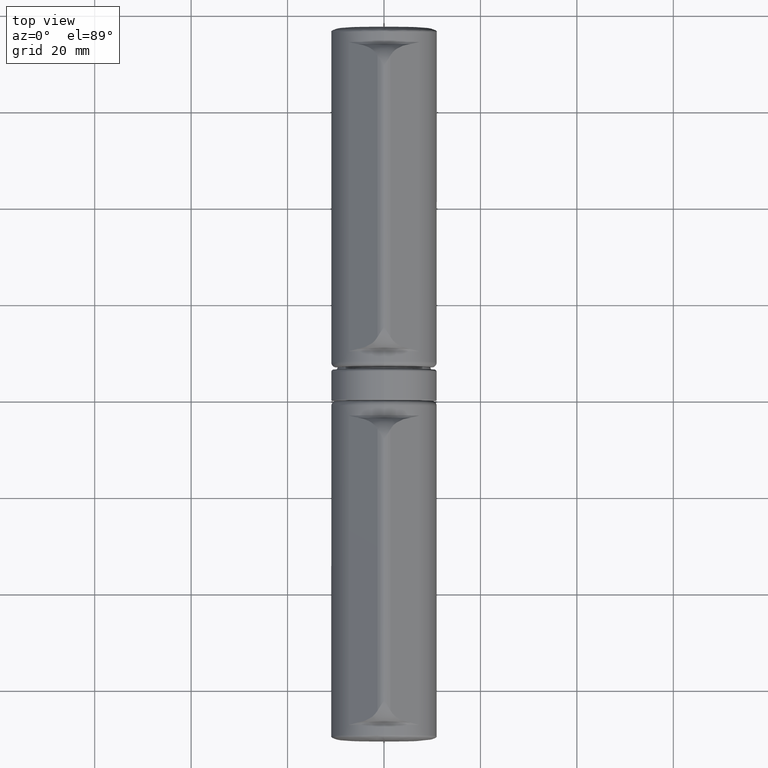
[diagram: clean part render]
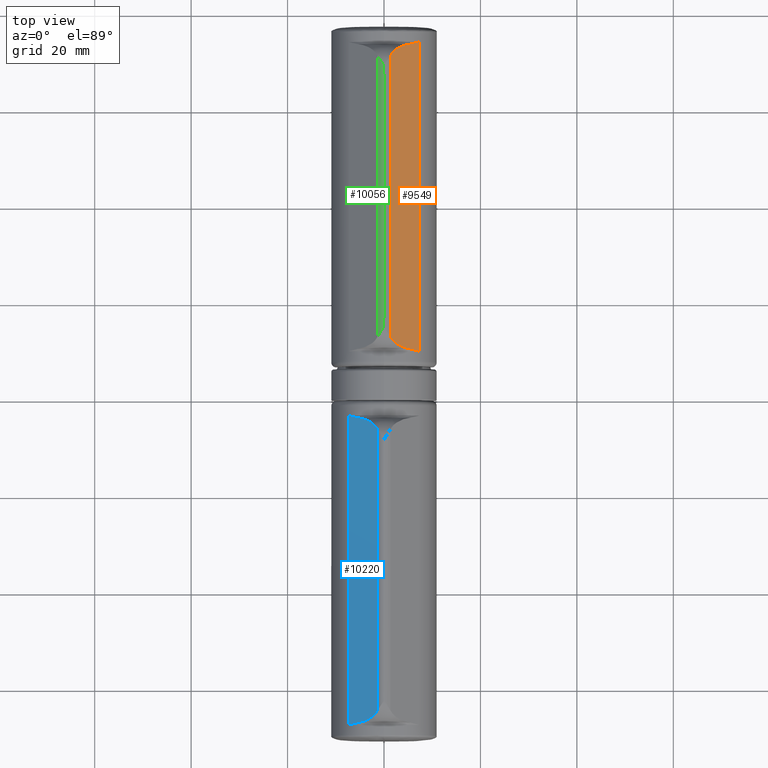
[diagram: same view with three faces highlighted in distinct colors, each labeled with its STEP entity id]
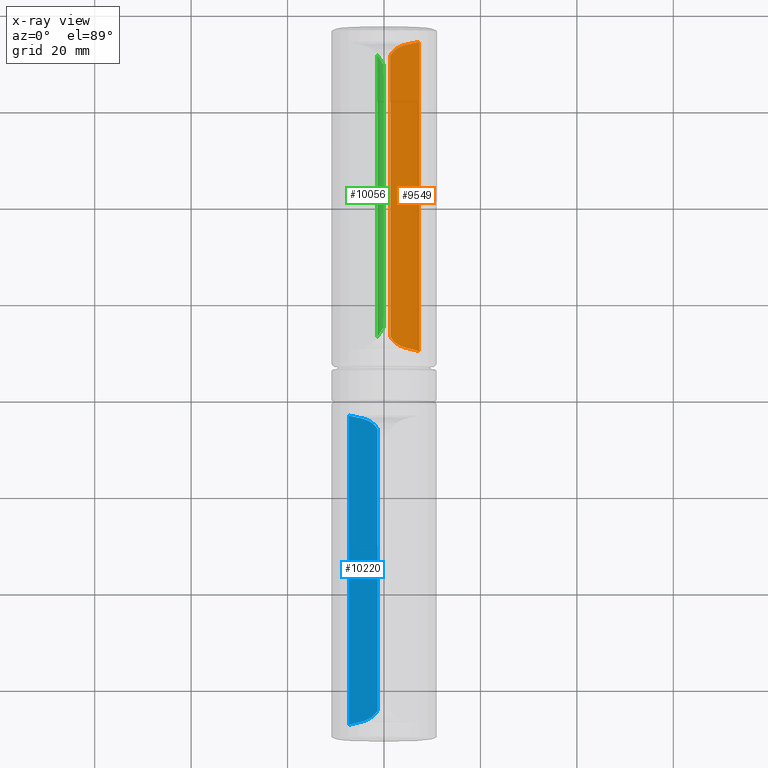
[diagram: x-ray of the same camera — body ghosted, the three highlighted faces saturated]
A machine part, top view with three faces highlighted in distinct colors.
The next image is the same camera in x-ray (body ghosted, the three faces saturated) — at least one of them is partly hidden behind the body in this view.
Their STEP definitions:

[orange] entity #9549 — the highlighted planar face has unit normal (-0.663, 0, -0.7486).
#92 = CARTESIAN_POINT ( 'NONE',  ( 5.447942985781649483, -31.62104201919538227, 9.868854917819074757 ) ) ;
#141 = ORIENTED_EDGE ( 'NONE', *, *, #9318, .T. ) ;
#223 = CARTESIAN_POINT ( 'NONE',  ( 3.940691542818085313, -31.26865915691613651, 11.20372505119188489 ) ) ;
#423 = CARTESIAN_POINT ( 'NONE',  ( 1.351001462188401891, 29.20793136768486065, 13.49723749695038322 ) ) ;
#501 = CARTESIAN_POINT ( 'NONE',  ( 2.860236993035878417, 30.76370890940802738, 12.16061019182591352 ) ) ;
#640 = DIRECTION ( 'NONE',  ( -0.6630007310922775288, 0.000000000000000000, -0.7486187484768902500 ) ) ;
#874 = VERTEX_POINT ( 'NONE', #8599 ) ;
#875 = CARTESIAN_POINT ( 'NONE',  ( 7.293008042015048709, -32.06640379061051505, 8.234806233245793194 ) ) ;
#1179 = CARTESIAN_POINT ( 'NONE',  ( 6.987323153768811856, -31.97934799532081840, 8.505530556946553133 ) ) ;
#1352 = CARTESIAN_POINT ( 'NONE',  ( 1.873287189992750346, 29.96014211084572310, 13.03468453514189918 ) ) ;
#1356 = EDGE_CURVE ( 'NONE', #3161, #10450, #1776, .T. ) ;
#1707 = EDGE_CURVE ( 'NONE', #4069, #874, #5567, .T. ) ;
#1776 = B_SPLINE_CURVE_WITH_KNOTS ( 'NONE', 3,
 ( #6953, #1892, #7778, #8617, #2728, #5057 ),
 .UNSPECIFIED., .F., .F.,
 ( 4, 2, 4 ),
 ( -2.097617699593517487E-05, 0.001231787720640654385, 0.002484551618277243846 ),
 .UNSPECIFIED. ) ;
#1882 = CARTESIAN_POINT ( 'NONE',  ( 2.860889670685041963, -30.75107170427024528, 12.16003215960398443 ) ) ;
#1892 = CARTESIAN_POINT ( 'NONE',  ( 6.987265212205322484, 31.97933149418308219, 8.505581871850210973 ) ) ;
#1916 = CARTESIAN_POINT ( 'NONE',  ( 3.035715932361849223, -30.85344858703630422, 12.00520042510404117 ) ) ;
#2040 = EDGE_CURVE ( 'NONE', #2745, #4069, #5476, .T. ) ;
#2072 = CARTESIAN_POINT ( 'NONE',  ( 3.951137175205043484, 31.26407879760331809, 11.19447406472732531 ) ) ;
#2326 = FACE_OUTER_BOUND ( 'NONE', #8473, .T. ) ;
#2490 = CARTESIAN_POINT ( 'NONE',  ( 2.519150998510887973, -30.51974603272019948, 12.46268686863303721 ) ) ;
#2687 = CARTESIAN_POINT ( 'NONE',  ( 6.067205832993830761, -31.73636218328562109, 9.320415914287179859 ) ) ;
#2728 = CARTESIAN_POINT ( 'NONE',  ( 5.758780296161765122, 31.66736844719444832, 9.593567444118923149 ) ) ;
#2745 = VERTEX_POINT ( 'NONE', #3302 ) ;
#2883 = AXIS2_PLACEMENT_3D ( 'NONE', #9923, #640, #4760 ) ;
#3161 = VERTEX_POINT ( 'NONE', #6582 ) ;
#3302 = CARTESIAN_POINT ( 'NONE',  ( 1.351001462188401891, 29.20793136768486065, 13.49723749695038322 ) ) ;
#3524 = ORIENTED_EDGE ( 'NONE', *, *, #1356, .T. ) ;
#3895 = PLANE ( 'NONE',  #2883 ) ;
#4069 = VERTEX_POINT ( 'NONE', #4658 ) ;
#4095 = CARTESIAN_POINT ( 'NONE',  ( 5.447942985781649483, -31.62104201919538227, 9.868854917819074757 ) ) ;
#4139 = CARTESIAN_POINT ( 'NONE',  ( 5.068691198825554523, -31.56451926592471224, 10.20473244230202603 ) ) ;
#4309 = B_SPLINE_CURVE_WITH_KNOTS ( 'NONE', 3,
 ( #9738, #4655, #7198, #8953, #2072, #5529, #8044, #501, #5603, #1352, #4587, #423 ),
 .UNSPECIFIED., .F., .F.,
 ( 4, 2, 2, 2, 2, 4 ),
 ( 0.002461092890325600798, 0.003982605754969787380, 0.004743362187291880888, 0.005504118619613973529, 0.007025631484258155340, 0.008547144348902338887 ),
 .UNSPECIFIED. ) ;
#4355 = ORIENTED_EDGE ( 'NONE', *, *, #7633, .F. ) ;
#4587 = CARTESIAN_POINT ( 'NONE',  ( 1.586987748190707537, 29.62056190616313245, 13.28824048683594938 ) ) ;
#4655 = CARTESIAN_POINT ( 'NONE',  ( 5.070549496298936809, 31.56479622200824409, 10.20308667456517959 ) ) ;
#4658 = CARTESIAN_POINT ( 'NONE',  ( 1.351001462184556967, -29.20793136767813181, 13.49723749695378849 ) ) ;
#4760 = DIRECTION ( 'NONE',  ( -0.7486187484768902500, 0.000000000000000000, 0.6630007310922775288 ) ) ;
#4852 = CARTESIAN_POINT ( 'NONE',  ( 1.587154504393031296, -29.62085348540339780, 13.28809280220437650 ) ) ;
#4967 = CARTESIAN_POINT ( 'NONE',  ( 4.691065978044128393, -31.48693990495932837, 10.53916942770528387 ) ) ;
#5043 = ORIENTED_EDGE ( 'NONE', *, *, #1707, .T. ) ;
#5057 = CARTESIAN_POINT ( 'NONE',  ( 5.447942985781639713, 31.62104201919538227, 9.868854917819081862 ) ) ;
#5199 = CARTESIAN_POINT ( 'NONE',  ( 1.872568329513564667, -29.95895200636811495, 13.03532118099698067 ) ) ;
#5235 = CARTESIAN_POINT ( 'NONE',  ( 2.351011572594790877, -30.38966351073075245, 12.61159652730056457 ) ) ;
#5323 = CARTESIAN_POINT ( 'NONE',  ( 7.293008042015048709, -32.06640379061051505, 8.234806233245793194 ) ) ;
#5476 = LINE ( 'NONE', #10051, #10408 ) ;
#5529 = CARTESIAN_POINT ( 'NONE',  ( 3.582135124443883267, 31.12109352856105815, 11.52127409468509889 ) ) ;
#5567 = B_SPLINE_CURVE_WITH_KNOTS ( 'NONE', 3,
 ( #9945, #4852, #5199, #5235, #2490, #1882, #1916, #6979, #223, #4967, #4139, #4095 ),
 .UNSPECIFIED., .F., .F.,
 ( 4, 2, 2, 2, 2, 4 ),
 ( 4.315846896087068535E-07, 0.001529138967088310456, 0.002293492658287661200, 0.003057846349487012162, 0.004586553731885712783, 0.006115261114284413838 ),
 .UNSPECIFIED. ) ;
#5603 = CARTESIAN_POINT ( 'NONE',  ( 2.515940252617995920, 30.53758993470651006, 12.46553040798957568 ) ) ;
#5920 = CARTESIAN_POINT ( 'NONE',  ( 5.447942985781639713, 31.62104201919538227, 9.868854917819081862 ) ) ;
#6228 = EDGE_CURVE ( 'NONE', #874, #8478, #6359, .T. ) ;
#6359 = B_SPLINE_CURVE_WITH_KNOTS ( 'NONE', 3,
 ( #92, #10120, #2687, #9503, #1179, #5323 ),
 .UNSPECIFIED., .F., .F.,
 ( 4, 2, 4 ),
 ( 0.000000000000000000, 0.001252526485368577044, 0.002505052970737154088 ),
 .UNSPECIFIED. ) ;
#6434 = LINE ( 'NONE', #6549, #10295 ) ;
#6549 = CARTESIAN_POINT ( 'NONE',  ( 7.293008042015048709, 35.25000000000000000, 8.234806233245793194 ) ) ;
#6582 = CARTESIAN_POINT ( 'NONE',  ( 7.293008042015048709, 32.06640379061051505, 8.234806233245793194 ) ) ;
#6953 = CARTESIAN_POINT ( 'NONE',  ( 7.293008042015048709, 32.06640379061051505, 8.234806233245793194 ) ) ;
#6979 = CARTESIAN_POINT ( 'NONE',  ( 3.569870829633170928, -31.12809028156801716, 11.53213574681761422 ) ) ;
#7198 = CARTESIAN_POINT ( 'NONE',  ( 4.695170118839919304, 31.48773122813875602, 10.53553466922020121 ) ) ;
#7324 = DIRECTION ( 'NONE',  ( 0.000000000000000000, -1.000000000000000000, 0.000000000000000000 ) ) ;
#7392 = DIRECTION ( 'NONE',  ( 0.000000000000000000, -1.000000000000000000, 0.000000000000000000 ) ) ;
#7574 = ORIENTED_EDGE ( 'NONE', *, *, #2040, .T. ) ;
#7633 = EDGE_CURVE ( 'NONE', #3161, #8478, #6434, .T. ) ;
#7778 = CARTESIAN_POINT ( 'NONE',  ( 6.681502846419490993, 31.89214389153532281, 8.776374812140524284 ) ) ;
#8044 = CARTESIAN_POINT ( 'NONE',  ( 3.398271117735956359, 31.03961271975524383, 11.68410994553298465 ) ) ;
#8473 = EDGE_LOOP ( 'NONE', ( #7574, #5043, #10964, #4355, #3524, #141 ) ) ;
#8478 = VERTEX_POINT ( 'NONE', #875 ) ;
#8599 = CARTESIAN_POINT ( 'NONE',  ( 5.447942985781649483, -31.62104201919538227, 9.868854917819074757 ) ) ;
#8617 = CARTESIAN_POINT ( 'NONE',  ( 6.067204845374561728, 31.73636196425200140, 9.320416788954418053 ) ) ;
#8953 = CARTESIAN_POINT ( 'NONE',  ( 4.136579845282111201, 31.32583796848864566, 11.03024009905795388 ) ) ;
#9318 = EDGE_CURVE ( 'NONE', #10450, #2745, #4309, .T. ) ;
#9503 = CARTESIAN_POINT ( 'NONE',  ( 6.681504807941662349, -31.89214442038468178, 8.776373074953687237 ) ) ;
#9549 = ADVANCED_FACE ( 'NONE', ( #2326 ), #3895, .F. ) ;
#9738 = CARTESIAN_POINT ( 'NONE',  ( 5.447942985781639713, 31.62104201919538227, 9.868854917819081862 ) ) ;
#9923 = CARTESIAN_POINT ( 'NONE',  ( 1.351001462184558077, 35.25000000000000000, 13.49723749695378849 ) ) ;
#9945 = CARTESIAN_POINT ( 'NONE',  ( 1.351001462184556967, -29.20793136767813181, 13.49723749695378849 ) ) ;
#10051 = CARTESIAN_POINT ( 'NONE',  ( 1.351001462184558077, 35.25000000000000000, 13.49723749695378849 ) ) ;
#10120 = CARTESIAN_POINT ( 'NONE',  ( 5.758780793587662927, -31.66736852132957836, 9.593567003582611719 ) ) ;
#10295 = VECTOR ( 'NONE', #7324, 1000.000000000000000 ) ;
#10408 = VECTOR ( 'NONE', #7392, 1000.000000000000000 ) ;
#10450 = VERTEX_POINT ( 'NONE', #5920 ) ;
#10964 = ORIENTED_EDGE ( 'NONE', *, *, #6228, .T. ) ;

[blue] entity #10220 — the highlighted planar face has unit normal (0.663, 0, -0.7486).
#90 = CARTESIAN_POINT ( 'NONE',  ( -6.067205832993834314, 31.73636218328562109, 9.320415914287174530 ) ) ;
#578 = B_SPLINE_CURVE_WITH_KNOTS ( 'NONE', 3,
 ( #9080, #7437, #4022, #9986, #742, #10825, #10025, #6593, #3225, #10063, #9161, #4056 ),
 .UNSPECIFIED., .F., .F.,
 ( 4, 2, 2, 2, 2, 4 ),
 ( 4.315846893827385273E-07, 0.001529138967088145224, 0.002293492658287523290, 0.003057846349486901573, 0.004586553731885658139, 0.006115261114284414705 ),
 .UNSPECIFIED. ) ;
#594 = CARTESIAN_POINT ( 'NONE',  ( -1.351001462184552748, 35.25000000000000000, 13.49723749695378672 ) ) ;
#651 = CARTESIAN_POINT ( 'NONE',  ( -5.447942985781632608, -31.62104201919538937, 9.868854917819087191 ) ) ;
#702 = DIRECTION ( 'NONE',  ( -0.7486187484768904721, 0.000000000000000000, -0.6630007310922771957 ) ) ;
#742 = CARTESIAN_POINT ( 'NONE',  ( -2.519150998510785389, 30.51974603272011421, 12.46268686863312247 ) ) ;
#812 = EDGE_CURVE ( 'NONE', #9708, #2149, #4344, .T. ) ;
#861 = CARTESIAN_POINT ( 'NONE',  ( -5.447942985781646819, 31.62104201919538937, 9.868854917819076533 ) ) ;
#1154 = CARTESIAN_POINT ( 'NONE',  ( -3.951137175203028651, -31.26407879760262176, 11.19447406472911055 ) ) ;
#1489 = VECTOR ( 'NONE', #4937, 1000.000000000000000 ) ;
#1675 = CARTESIAN_POINT ( 'NONE',  ( -6.681504807941669455, 31.89214442038467467, 8.776373074953683684 ) ) ;
#2000 = CARTESIAN_POINT ( 'NONE',  ( -2.515940252614203398, -30.53758993470379224, 12.46553040799293477 ) ) ;
#2064 = CARTESIAN_POINT ( 'NONE',  ( -5.447942985781632608, -31.62104201919538937, 9.868854917819087191 ) ) ;
#2102 = CARTESIAN_POINT ( 'NONE',  ( -1.351001462184552526, -29.20793136767813891, 13.49723749695378672 ) ) ;
#2149 = VERTEX_POINT ( 'NONE', #2339 ) ;
#2205 = CARTESIAN_POINT ( 'NONE',  ( -5.447942985781646819, 31.62104201919538937, 9.868854917819076533 ) ) ;
#2339 = CARTESIAN_POINT ( 'NONE',  ( -5.447942985781632608, -31.62104201919538937, 9.868854917819087191 ) ) ;
#2442 = EDGE_CURVE ( 'NONE', #7402, #5525, #578, .T. ) ;
#2477 = CARTESIAN_POINT ( 'NONE',  ( -5.758780296161758017, -31.66736844719445543, 9.593567444118928478 ) ) ;
#2816 = FACE_OUTER_BOUND ( 'NONE', #6229, .T. ) ;
#2845 = CARTESIAN_POINT ( 'NONE',  ( -1.873287189988679824, -29.96014211084137813, 13.03468453514550518 ) ) ;
#2922 = CARTESIAN_POINT ( 'NONE',  ( -4.136579845280338397, -31.32583796848808433, 11.03024009905952063 ) ) ;
#2930 = VERTEX_POINT ( 'NONE', #8751 ) ;
#2959 = CARTESIAN_POINT ( 'NONE',  ( -1.586987748186614589, -29.62056190615778917, 13.28824048683957137 ) ) ;
#3134 = LINE ( 'NONE', #594, #4187 ) ;
#3225 = CARTESIAN_POINT ( 'NONE',  ( -3.940691542818025361, 31.26865915691611519, 11.20372505119193818 ) ) ;
#3749 = CARTESIAN_POINT ( 'NONE',  ( -3.582135124441380825, -31.12109352856001365, 11.52127409468731223 ) ) ;
#3998 = CARTESIAN_POINT ( 'NONE',  ( -7.293008042015047820, 35.25000000000000000, 8.234806233245794971 ) ) ;
#4022 = CARTESIAN_POINT ( 'NONE',  ( -1.872568329513450758, 29.95895200636798705, 13.03532118099707660 ) ) ;
#4056 = CARTESIAN_POINT ( 'NONE',  ( -5.447942985781646819, 31.62104201919538937, 9.868854917819076533 ) ) ;
#4150 = CARTESIAN_POINT ( 'NONE',  ( -5.758780793587664704, 31.66736852132957836, 9.593567003582615271 ) ) ;
#4187 = VECTOR ( 'NONE', #9902, 1000.000000000000000 ) ;
#4344 = B_SPLINE_CURVE_WITH_KNOTS ( 'NONE', 3,
 ( #6974, #10032, #9355, #5724, #2477, #651 ),
 .UNSPECIFIED., .F., .F.,
 ( 4, 2, 4 ),
 ( -2.097617699592196455E-05, 0.001231787720640672816, 0.002484551618277267698 ),
 .UNSPECIFIED. ) ;
#4401 = CARTESIAN_POINT ( 'NONE',  ( -7.293008042015047820, 32.06640379061050794, 8.234806233245794971 ) ) ;
#4828 = VERTEX_POINT ( 'NONE', #4401 ) ;
#4937 = DIRECTION ( 'NONE',  ( -0.000000000000000000, -1.000000000000000000, -0.000000000000000000 ) ) ;
#5240 = CARTESIAN_POINT ( 'NONE',  ( -1.351001462184444613, 29.20793136767795062, 13.49723749695388086 ) ) ;
#5281 = ORIENTED_EDGE ( 'NONE', *, *, #812, .T. ) ;
#5303 = CARTESIAN_POINT ( 'NONE',  ( -3.398271117733234536, -31.03961271975398262, 11.68410994553539162 ) ) ;
#5525 = VERTEX_POINT ( 'NONE', #2205 ) ;
#5724 = CARTESIAN_POINT ( 'NONE',  ( -6.067204845374564393, -31.73636196425197298, 9.320416788954416276 ) ) ;
#5909 = CARTESIAN_POINT ( 'NONE',  ( -7.293008042015047820, 32.06640379061050794, 8.234806233245794971 ) ) ;
#6058 = EDGE_CURVE ( 'NONE', #4828, #9708, #9428, .T. ) ;
#6127 = AXIS2_PLACEMENT_3D ( 'NONE', #9871, #10724, #702 ) ;
#6229 = EDGE_LOOP ( 'NONE', ( #10213, #5281, #9677, #7947, #8089, #7943 ) ) ;
#6554 = PLANE ( 'NONE',  #6127 ) ;
#6593 = CARTESIAN_POINT ( 'NONE',  ( -3.569870829633105647, 31.12809028156800295, 11.53213574681767462 ) ) ;
#6816 = B_SPLINE_CURVE_WITH_KNOTS ( 'NONE', 3,
 ( #2064, #8000, #7928, #2922, #1154, #3749, #5303, #9697, #2000, #2845, #2959, #2102 ),
 .UNSPECIFIED., .F., .F.,
 ( 4, 2, 2, 2, 2, 4 ),
 ( 0.002461092890325610773, 0.003982605754971859507, 0.004743362187294980839, 0.005504118619618105640, 0.007025631484264352640, 0.008547144348910601375 ),
 .UNSPECIFIED. ) ;
#6974 = CARTESIAN_POINT ( 'NONE',  ( -7.293008042015047820, -32.06640379061049373, 8.234806233245794971 ) ) ;
#7206 = EDGE_CURVE ( 'NONE', #2149, #2930, #6816, .T. ) ;
#7402 = VERTEX_POINT ( 'NONE', #5240 ) ;
#7437 = CARTESIAN_POINT ( 'NONE',  ( -1.587154504392916943, 29.62085348540325924, 13.28809280220448130 ) ) ;
#7928 = CARTESIAN_POINT ( 'NONE',  ( -4.695170118838894346, -31.48773122813856062, 10.53553466922111248 ) ) ;
#7943 = ORIENTED_EDGE ( 'NONE', *, *, #10718, .T. ) ;
#7947 = ORIENTED_EDGE ( 'NONE', *, *, #8371, .F. ) ;
#8000 = CARTESIAN_POINT ( 'NONE',  ( -5.070549496298416337, -31.56479622200817658, 10.20308667456564322 ) ) ;
#8089 = ORIENTED_EDGE ( 'NONE', *, *, #2442, .T. ) ;
#8371 = EDGE_CURVE ( 'NONE', #7402, #2930, #3134, .T. ) ;
#8751 = CARTESIAN_POINT ( 'NONE',  ( -1.351001462184552526, -29.20793136767813891, 13.49723749695378672 ) ) ;
#9080 = CARTESIAN_POINT ( 'NONE',  ( -1.351001462184444613, 29.20793136767795062, 13.49723749695388086 ) ) ;
#9161 = CARTESIAN_POINT ( 'NONE',  ( -5.068691198825536759, 31.56451926592470514, 10.20473244230204024 ) ) ;
#9355 = CARTESIAN_POINT ( 'NONE',  ( -6.681502846419497210, -31.89214389153528728, 8.776374812140518955 ) ) ;
#9360 = CARTESIAN_POINT ( 'NONE',  ( -6.987323153768381090, 31.97934799532357886, 8.505530556946936827 ) ) ;
#9428 = LINE ( 'NONE', #3998, #1489 ) ;
#9512 = B_SPLINE_CURVE_WITH_KNOTS ( 'NONE', 3,
 ( #861, #4150, #90, #1675, #9360, #5909 ),
 .UNSPECIFIED., .F., .F.,
 ( 4, 2, 4 ),
 ( 8.673617379884035472E-19, 0.001252526485368587669, 0.002505052970737174471 ),
 .UNSPECIFIED. ) ;
#9677 = ORIENTED_EDGE ( 'NONE', *, *, #7206, .T. ) ;
#9697 = CARTESIAN_POINT ( 'NONE',  ( -2.860236993032546859, -30.76370890940604141, 12.16061019182885872 ) ) ;
#9708 = VERTEX_POINT ( 'NONE', #10951 ) ;
#9871 = CARTESIAN_POINT ( 'NONE',  ( -7.293008042015047820, 35.25000000000000000, 8.234806233245794971 ) ) ;
#9902 = DIRECTION ( 'NONE',  ( -0.000000000000000000, -1.000000000000000000, -0.000000000000000000 ) ) ;
#9986 = CARTESIAN_POINT ( 'NONE',  ( -2.351011572594683852, 30.38966351073067074, 12.61159652730066227 ) ) ;
#10025 = CARTESIAN_POINT ( 'NONE',  ( -3.035715932361763958, 30.85344858703625448, 12.00520042510411756 ) ) ;
#10032 = CARTESIAN_POINT ( 'NONE',  ( -6.987265212205070242, -31.97933149418466670, 8.505581871850434794 ) ) ;
#10063 = CARTESIAN_POINT ( 'NONE',  ( -4.691065978044097307, 31.48693990495932837, 10.53916942770531051 ) ) ;
#10213 = ORIENTED_EDGE ( 'NONE', *, *, #6058, .T. ) ;
#10220 = ADVANCED_FACE ( 'NONE', ( #2816 ), #6554, .F. ) ;
#10718 = EDGE_CURVE ( 'NONE', #5525, #4828, #9512, .T. ) ;
#10724 = DIRECTION ( 'NONE',  ( 0.6630007310922773067, 0.000000000000000000, -0.7486187484768905831 ) ) ;
#10825 = CARTESIAN_POINT ( 'NONE',  ( -2.860889670684950925, 30.75107170427018843, 12.16003215960406436 ) ) ;
#10951 = CARTESIAN_POINT ( 'NONE',  ( -7.293008042015047820, -32.06640379061049373, 8.234806233245794971 ) ) ;

[green] entity #10056 — the highlighted cylindrical surface (edge-blend (fillet) strip) has radius 2 mm, axis along (0, -1, 0).
#19 = CARTESIAN_POINT ( 'NONE',  ( -0.5001282226487917537, 27.86005570449229651, 13.94633177584729644 ) ) ;
#185 = CARTESIAN_POINT ( 'NONE',  ( -0.9495471721019751454, -28.54085620622285546, 13.78933436052440520 ) ) ;
#209 = EDGE_LOOP ( 'NONE', ( #9123, #3646, #4677, #529, #4982, #4202, #3869, #8597 ) ) ;
#214 = CARTESIAN_POINT ( 'NONE',  ( -0.6156692077755159254, -28.03253752961894207, 13.91448063943843749 ) ) ;
#368 = CARTESIAN_POINT ( 'NONE',  ( -0.02499999999999828748, -25.24999999999999289, 12.00000000000000355 ) ) ;
#402 = DIRECTION ( 'NONE',  ( 0.000000000000000000, -1.000000000000000000, 0.000000000000000000 ) ) ;
#425 = VERTEX_POINT ( 'NONE', #9191 ) ;
#529 = ORIENTED_EDGE ( 'NONE', *, *, #9605, .T. ) ;
#586 = FACE_OUTER_BOUND ( 'NONE', #209, .T. ) ;
#716 = CARTESIAN_POINT ( 'NONE',  ( -0.6152469644701812346, 28.03189699772707044, 13.91463114303777004 ) ) ;
#787 = DIRECTION ( 'NONE',  ( 0.000000000000000000, -1.000000000000000000, 0.000000000000000000 ) ) ;
#827 = CARTESIAN_POINT ( 'NONE',  ( -0.3258129472107668123, 27.60225974672071203, 13.97813046162228190 ) ) ;
#867 = CARTESIAN_POINT ( 'NONE',  ( -1.351001462184442614, 29.20793136767795062, 13.49723749695388264 ) ) ;
#917 = CARTESIAN_POINT ( 'NONE',  ( -0.2679075107722415083, -27.51702913599192968, 13.98607088621631966 ) ) ;
#1050 = CARTESIAN_POINT ( 'NONE',  ( -0.04019047938162991634, -27.18061954580361217, 13.99994231150222213 ) ) ;
#1071 = DIRECTION ( 'NONE',  ( 0.000000000000000000, 0.000000000000000000, 1.000000000000000000 ) ) ;
#1125 = B_SPLINE_CURVE_WITH_KNOTS ( 'NONE', 3,
 ( #4866, #10125, #9287, #10874, #1599, #7523, #5872, #8363, #4112, #9170, #827, #19, #716, #6601, #2397, #867 ),
 .UNSPECIFIED., .F., .F.,
 ( 4, 2, 2, 2, 2, 2, 2, 4 ),
 ( 1.956890824823729344E-07, 3.924361120496388898E-05, 7.829153332744539812E-05, 0.0001563873775724169816, 0.0003125790660623600130, 0.0006249624430422546411, 0.001249729197002034681, 0.002499262704921594545 ),
 .UNSPECIFIED. ) ;
#1194 = EDGE_CURVE ( 'NONE', #10183, #2868, #1125, .T. ) ;
#1290 = EDGE_CURVE ( 'NONE', #5657, #9240, #6683, .T. ) ;
#1531 = CARTESIAN_POINT ( 'NONE',  ( -1.351001462184552970, -29.20793136767814602, 13.49723749695378672 ) ) ;
#1599 = CARTESIAN_POINT ( 'NONE',  ( -0.06989227748949818075, 27.22487302322766212, 13.99950916635972931 ) ) ;
#1668 = CARTESIAN_POINT ( 'NONE',  ( -0.02499999999999828748, -25.24999999999999289, 14.00000000000000178 ) ) ;
#2009 = VECTOR ( 'NONE', #787, 1000.000000000000000 ) ;
#2034 = DIRECTION ( 'NONE',  ( 0.000000000000000000, -1.000000000000000000, 0.000000000000000000 ) ) ;
#2103 = AXIS2_PLACEMENT_3D ( 'NONE', #10075, #10127, #8366 ) ;
#2258 = B_SPLINE_CURVE_WITH_KNOTS ( 'NONE', 3,
 ( #2483, #9265, #185, #214, #3440, #3479, #917, #10274, #10302, #8569, #2594, #9382, #5108, #2709, #1050, #2741 ),
 .UNSPECIFIED., .F., .F.,
 ( 4, 2, 2, 2, 2, 2, 2, 4 ),
 ( 4.340072874877068128E-07, 0.001240519005739925285, 0.001860561504966143928, 0.002170582754579253142, 0.002325593379385807857, 0.002403098691789084997, 0.002441851347990727904, 0.002480604004192371245 ),
 .UNSPECIFIED. ) ;
#2397 = CARTESIAN_POINT ( 'NONE',  ( -1.160990710298336559, 28.87569070998567256, 13.66551710212297088 ) ) ;
#2483 = CARTESIAN_POINT ( 'NONE',  ( -1.351001462184552970, -29.20793136767814602, 13.49723749695378672 ) ) ;
#2508 = CARTESIAN_POINT ( 'NONE',  ( -0.04019047952020959880, -26.20871215252207520, 13.99994231150099999 ) ) ;
#2594 = CARTESIAN_POINT ( 'NONE',  ( -0.09167234762560433348, -27.25763856088748582, 13.99894086666714799 ) ) ;
#2648 = DIRECTION ( 'NONE',  ( 0.000000000000000000, 1.000000000000000000, -9.842402700577629551E-17 ) ) ;
#2709 = CARTESIAN_POINT ( 'NONE',  ( -0.04891763799571458016, -27.19185033604463797, 13.99986890743364576 ) ) ;
#2741 = CARTESIAN_POINT ( 'NONE',  ( -0.04019047951973318822, -27.16742430504415040, 13.99994231150100532 ) ) ;
#2868 = VERTEX_POINT ( 'NONE', #10192 ) ;
#3440 = CARTESIAN_POINT ( 'NONE',  ( -0.5013659999273770707, -27.86189442064418031, 13.94605056130643383 ) ) ;
#3479 = CARTESIAN_POINT ( 'NONE',  ( -0.3265468217370002812, -27.60334104574922875, 13.97802397674100838 ) ) ;
#3562 = VECTOR ( 'NONE', #2034, 1000.000000000000000 ) ;
#3646 = ORIENTED_EDGE ( 'NONE', *, *, #9843, .T. ) ;
#3668 = CARTESIAN_POINT ( 'NONE',  ( -0.04019047952020959880, 26.20871215252207520, 13.99994231150099999 ) ) ;
#3689 = VERTEX_POINT ( 'NONE', #1531 ) ;
#3807 = DIRECTION ( 'NONE',  ( 0.000000000000000000, 0.000000000000000000, -1.000000000000000000 ) ) ;
#3869 = ORIENTED_EDGE ( 'NONE', *, *, #6215, .T. ) ;
#3952 = LINE ( 'NONE', #4543, #3562 ) ;
#3992 = AXIS2_PLACEMENT_3D ( 'NONE', #7174, #402, #3807 ) ;
#4112 = CARTESIAN_POINT ( 'NONE',  ( -0.1794816681738806430, 27.38700997572494344, 13.99424203055542115 ) ) ;
#4202 = ORIENTED_EDGE ( 'NONE', *, *, #1194, .T. ) ;
#4230 = EDGE_CURVE ( 'NONE', #3689, #5657, #2258, .T. ) ;
#4543 = CARTESIAN_POINT ( 'NONE',  ( -0.02499999999999828748, 35.25000000000000000, 14.00000000000000178 ) ) ;
#4677 = ORIENTED_EDGE ( 'NONE', *, *, #7140, .F. ) ;
#4866 = CARTESIAN_POINT ( 'NONE',  ( -0.04019047951977562649, 27.16742430504415040, 13.99994231150100354 ) ) ;
#4982 = ORIENTED_EDGE ( 'NONE', *, *, #7494, .T. ) ;
#5108 = CARTESIAN_POINT ( 'NONE',  ( -0.06272908214062841714, -27.21405779639177069, 13.99965602459222325 ) ) ;
#5122 = CARTESIAN_POINT ( 'NONE',  ( -1.351001462184552748, 35.25000000000000000, 13.49723749695378672 ) ) ;
#5293 = DIRECTION ( 'NONE',  ( 0.000000000000000000, 1.000000000000000000, -9.842402700577629551E-17 ) ) ;
#5657 = VERTEX_POINT ( 'NONE', #9666 ) ;
#5739 = VECTOR ( 'NONE', #2648, 1000.000000000000000 ) ;
#5872 = CARTESIAN_POINT ( 'NONE',  ( -0.1062027294715010006, 27.27908258809059916, 13.99840458350219663 ) ) ;
#6085 = VECTOR ( 'NONE', #10357, 1000.000000000000000 ) ;
#6215 = EDGE_CURVE ( 'NONE', #2868, #3689, #7973, .T. ) ;
#6343 = CIRCLE ( 'NONE', #6711, 2.000000000000001776 ) ;
#6601 = CARTESIAN_POINT ( 'NONE',  ( -0.9500490946594606356, 28.54161573059286283, 13.78916174346960410 ) ) ;
#6683 = LINE ( 'NONE', #2508, #5739 ) ;
#6711 = AXIS2_PLACEMENT_3D ( 'NONE', #368, #5293, #1071 ) ;
#6894 = LINE ( 'NONE', #3668, #6085 ) ;
#6906 = VERTEX_POINT ( 'NONE', #9183 ) ;
#7140 = EDGE_CURVE ( 'NONE', #6906, #10309, #3952, .T. ) ;
#7158 = CIRCLE ( 'NONE', #2103, 2.000000000000001776 ) ;
#7174 = CARTESIAN_POINT ( 'NONE',  ( -0.02499999999999828748, 35.25000000000000000, 12.00000000000000355 ) ) ;
#7494 = EDGE_CURVE ( 'NONE', #425, #10183, #6894, .T. ) ;
#7515 = CARTESIAN_POINT ( 'NONE',  ( -0.04019047951977562649, 27.16742430504415040, 13.99994231150100354 ) ) ;
#7523 = CARTESIAN_POINT ( 'NONE',  ( -0.09156454697687065047, 27.25747831101639562, 13.99894423454601800 ) ) ;
#7973 = LINE ( 'NONE', #5122, #2009 ) ;
#8260 = CYLINDRICAL_SURFACE ( 'NONE', #3992, 2.000000000000001776 ) ;
#8363 = CARTESIAN_POINT ( 'NONE',  ( -0.1501165675767205387, 27.34388185887196698, 13.99629779718923395 ) ) ;
#8366 = DIRECTION ( 'NONE',  ( 0.000000000000000000, 0.000000000000000000, -1.000000000000000000 ) ) ;
#8569 = CARTESIAN_POINT ( 'NONE',  ( -0.1063434402168944443, -27.27929075759467636, 13.99839909054450615 ) ) ;
#8597 = ORIENTED_EDGE ( 'NONE', *, *, #4230, .T. ) ;
#8744 = CARTESIAN_POINT ( 'NONE',  ( -0.04019047952020959186, -25.24999999999999289, 13.99994231150100177 ) ) ;
#9123 = ORIENTED_EDGE ( 'NONE', *, *, #1290, .T. ) ;
#9170 = CARTESIAN_POINT ( 'NONE',  ( -0.2673847846787212879, 27.51626032181052395, 13.98613017325113539 ) ) ;
#9183 = CARTESIAN_POINT ( 'NONE',  ( -0.02499999999999828748, 25.24999999999999289, 14.00000000000000178 ) ) ;
#9191 = CARTESIAN_POINT ( 'NONE',  ( -0.04019047952020882858, 25.24999999999999289, 13.99994231150100177 ) ) ;
#9240 = VERTEX_POINT ( 'NONE', #8744 ) ;
#9265 = CARTESIAN_POINT ( 'NONE',  ( -1.160508044110442061, -28.87484675073534746, 13.66594456675181846 ) ) ;
#9287 = CARTESIAN_POINT ( 'NONE',  ( -0.04890691204995570307, 27.19183058076630033, 13.99986897204585645 ) ) ;
#9382 = CARTESIAN_POINT ( 'NONE',  ( -0.06995353398349367369, -27.22496614064043996, 13.99950784628992828 ) ) ;
#9605 = EDGE_CURVE ( 'NONE', #6906, #425, #7158, .T. ) ;
#9666 = CARTESIAN_POINT ( 'NONE',  ( -0.04019047951973318822, -27.16742430504415040, 13.99994231150100532 ) ) ;
#9843 = EDGE_CURVE ( 'NONE', #9240, #10309, #6343, .T. ) ;
#10056 = ADVANCED_FACE ( 'NONE', ( #586 ), #8260, .T. ) ;
#10075 = CARTESIAN_POINT ( 'NONE',  ( -0.02499999999999828748, 25.24999999999999289, 12.00000000000000355 ) ) ;
#10125 = CARTESIAN_POINT ( 'NONE',  ( -0.04019047952001702367, 27.18071537509018398, 13.99994231150100532 ) ) ;
#10127 = DIRECTION ( 'NONE',  ( 0.000000000000000000, -1.000000000000000000, -9.842402700577629551E-17 ) ) ;
#10183 = VERTEX_POINT ( 'NONE', #7515 ) ;
#10192 = CARTESIAN_POINT ( 'NONE',  ( -1.351001462184442614, 29.20793136767795062, 13.49723749695388264 ) ) ;
#10274 = CARTESIAN_POINT ( 'NONE',  ( -0.1797755674964474359, -27.38744201227845920, 13.99422038142041202 ) ) ;
#10302 = CARTESIAN_POINT ( 'NONE',  ( -0.1503508223231035112, -27.34422644235247191, 13.99628402106629110 ) ) ;
#10309 = VERTEX_POINT ( 'NONE', #1668 ) ;
#10357 = DIRECTION ( 'NONE',  ( 0.000000000000000000, 1.000000000000000000, 9.842402700577629551E-17 ) ) ;
#10874 = CARTESIAN_POINT ( 'NONE',  ( -0.06268146067868017590, 27.21398372410880029, 13.99965685889269906 ) ) ;